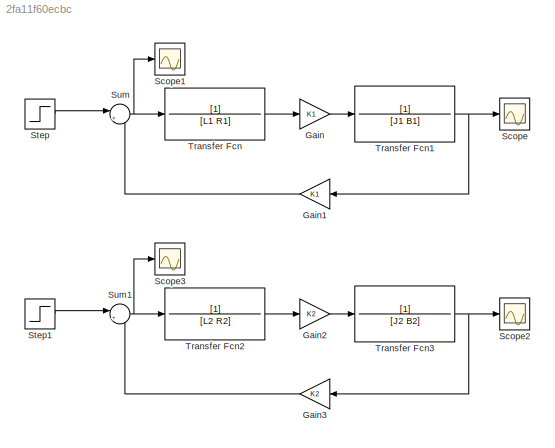
MODEL slx_2fa11f60ecbc
KIND model
CONFIG AbsTol = auto
CONFIG EnableMultiTasking = off
CONFIG FixedStep = 1e-5
CONFIG MaxStep = auto
CONFIG MinStep = auto
CONFIG RelTol = 1e-3
CONFIG SampleTimeConstraint = Unconstrained
CONFIG SolverName = ode4
CONFIG StartTime = 0.0
CONFIG StopTime = 0.15
BLOCK [Gain] Gain
  Gain = K1
BLOCK [Gain] Gain1
  Gain = K1
  NameLocation = top
BLOCK [Gain] Gain2
  Gain = K2
BLOCK [Gain] Gain3
  Gain = K2
  NameLocation = top
BLOCK [Scope] Scope
  Floating = off
  NumInputPorts = 1
  Ports = [1]
  ScopeSpecificationString = Simulink.scopes.TimeScopeBlockCfg('CurrentConfiguration', extmgr.ConfigurationSet(extmgr.Configuration('Core','General UI',true),extmgr.Configuration('Core','Source UI',true),extmgr.Configuration('Sources','WiredSimulink',true),extmgr.Configuration('Visuals','Time Domain',true,'SerializedDisplays',{struct('MinYLimReal','-80.73418','MaxYLimReal','726.60758','YLabelReal','','MinYLimMag','0.00000','M...<+1343ch>
BLOCK [Scope] Scope1
  Floating = off
  NumInputPorts = 1
  Ports = [1]
  ScopeSpecificationString = Simulink.scopes.TimeScopeBlockCfg('CurrentConfiguration', extmgr.ConfigurationSet(extmgr.Configuration('Core','General UI',true),extmgr.Configuration('Core','Source UI',true),extmgr.Configuration('Sources','WiredSimulink',true,'DataLoggingVariableName','ScopeData1'),extmgr.Configuration('Visuals','Time Domain',true,'SerializedDisplays',{struct('MinYLimReal','-2.01255','MaxYLimReal','26.89028','YLa...<+1366ch>
BLOCK [Scope] Scope2
  Floating = off
  NumInputPorts = 1
  Ports = [1]
  ScopeSpecificationString = Simulink.scopes.TimeScopeBlockCfg('CurrentConfiguration', extmgr.ConfigurationSet(extmgr.Configuration('Core','General UI',true),extmgr.Configuration('Core','Source UI',true),extmgr.Configuration('Sources','WiredSimulink',true,'DataLoggingVariableName','ScopeData2'),extmgr.Configuration('Visuals','Time Domain',true,'SerializedDisplays',{struct('MinYLimReal','-88.76275','MaxYLimReal','798.86474','Y...<+1382ch>
BLOCK [Scope] Scope3
  Floating = off
  NumInputPorts = 1
  Ports = [1]
  ScopeSpecificationString = Simulink.scopes.TimeScopeBlockCfg('CurrentConfiguration', extmgr.ConfigurationSet(extmgr.Configuration('Core','General UI',true),extmgr.Configuration('Core','Source UI',true),extmgr.Configuration('Sources','WiredSimulink',true,'DataLoggingVariableName','ScopeData3'),extmgr.Configuration('Visuals','Time Domain',true,'SerializedDisplays',{struct('MinYLimReal','-1.4039','MaxYLimReal','26.82266','YLab...<+1365ch>
BLOCK [Step] Step
  After = 24
  SampleTime = 0.2
  Time = 0
BLOCK [Step] Step1
  After = 24
  SampleTime = 0.2
  Time = 0
BLOCK [Sum] Sum
  Inputs = |+-
  Ports = [2, 1]
BLOCK [Sum] Sum1
  Inputs = |+-
  Ports = [2, 1]
BLOCK [TransferFcn] Transfer Fcn
  Denominator = [L1 R1]
BLOCK [TransferFcn] Transfer Fcn1
  Denominator = [J1 B1]
BLOCK [TransferFcn] Transfer Fcn2
  Denominator = [L2 R2]
BLOCK [TransferFcn] Transfer Fcn3
  Denominator = [J2 B2]
LINE Gain1:1 -> Sum:2
LINE Gain2:1 -> Transfer Fcn3:1
LINE Gain3:1 -> Sum1:2
LINE Gain:1 -> Transfer Fcn1:1
LINE Step1:1 -> Sum1:1
LINE Step:1 -> Sum:1
NET Sum1:1 -> Scope3:1, Transfer Fcn2:1
NET Sum:1 -> Scope1:1, Transfer Fcn:1
NET Transfer Fcn1:1 -> Gain1:1, Scope:1
LINE Transfer Fcn2:1 -> Gain2:1
NET Transfer Fcn3:1 -> Gain3:1, Scope2:1
LINE Transfer Fcn:1 -> Gain:1
note: NET lines group one-source signal fan-out (src -> all destinations, sorted); 1:1 wires keep LINE
